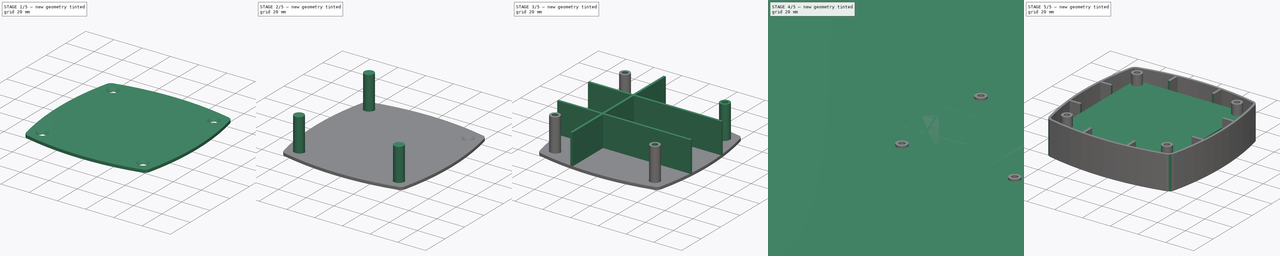
[diagram: build sequence overview — one tinted view per stage of 5, left to right]
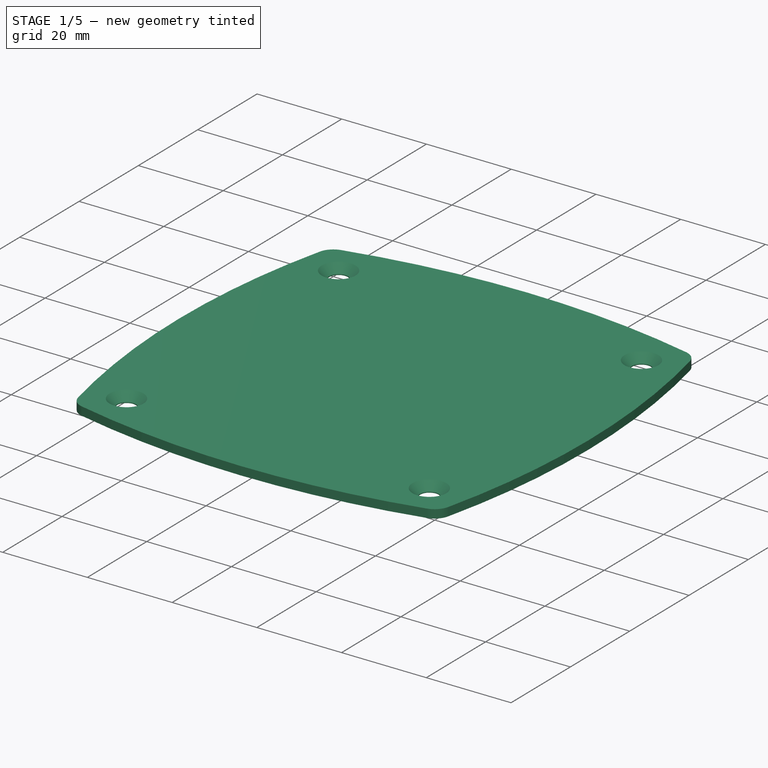
[diagram: stage 1 of 5 — iso view after this stage's code; geometry added in this stage tinted green]
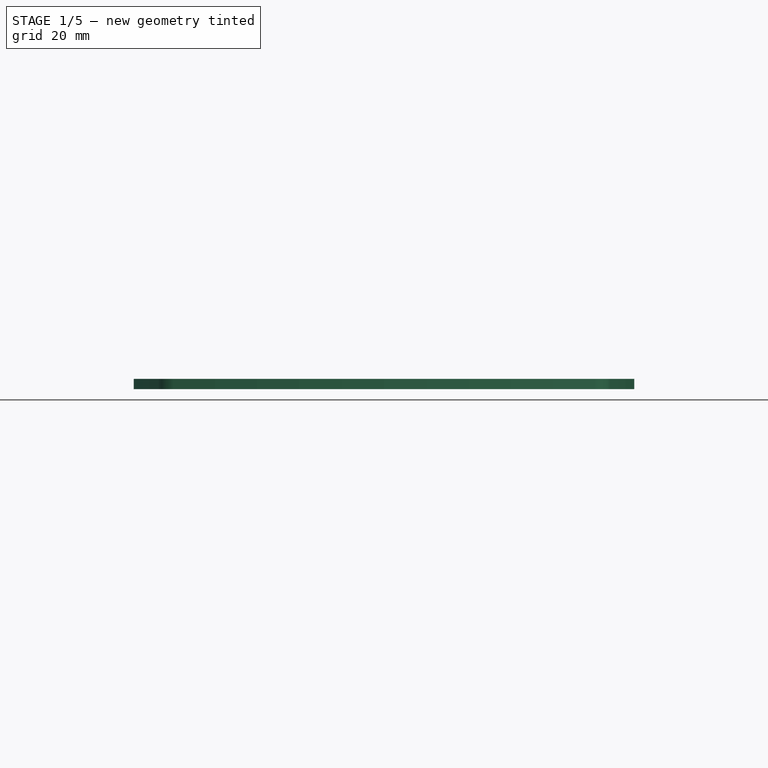
[diagram: stage 1 of 5 — front view after this stage's code; geometry added in this stage tinted green]
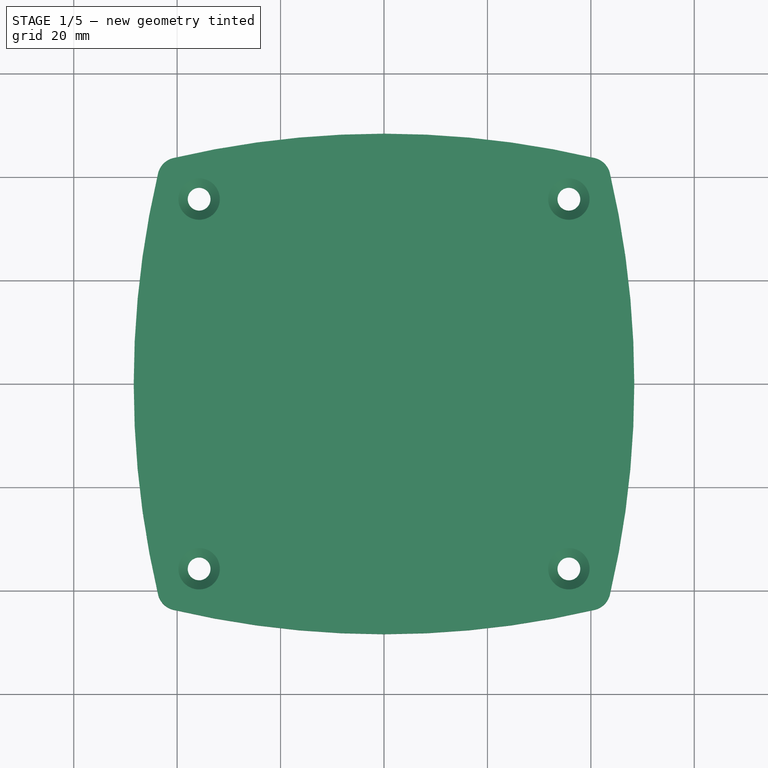
[diagram: stage 1 of 5 — top view after this stage's code; geometry added in this stage tinted green]
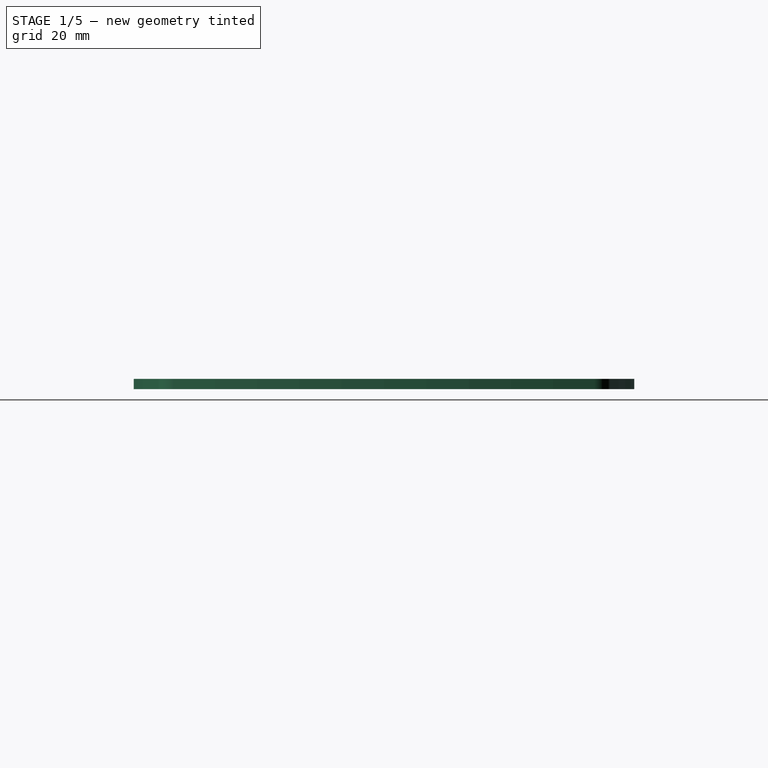
[diagram: stage 1 of 5 — right view after this stage's code; geometry added in this stage tinted green]
FCSTD DOCUMENT  (FreeCAD 0.18R16093 (Git))
Label: ground_plate
License: All rights reserved
LicenseURL: http://en.wikipedia.org/wiki/All_rights_reserved
objects: PartDesign::AdditiveCylinder×20, PartDesign::AdditiveBox×11, PartDesign::Boolean×10, PartDesign::Body×5, PartDesign::Fillet×4, TechDraw::DrawViewDimension×4, Sketcher::SketchObject×1, PartDesign::Hole×1, TechDraw::DrawSVGTemplate×1, Part::Feature×1, TechDraw::DrawViewPart×1, TechDraw::DrawPage×1
note: 85 computed .brp shape members not serialized (recipe doc carries the construction recipe); baked Part::Feature solids carry a one-line shape summary decoded from their .brp

FEATURE [PartDesign::Body] FanCover
  Group = -> [FanCoverHull,Cut,FielehFanCoverOuter,FielehFanCoverInner,FanCoverSpacer,Cut001]
  Origin = -> Origin001
  Tip = -> Cut001
FEATURE [PartDesign::AdditiveCylinder] GPCylinderInner0
  Angle = 360
  AttacherType = Attacher::AttachEngine3D
  Height = 2
  Placement = pos=(130,0,-24) rot=(0,0,1;0rad)
  Radius = 178.4
FEATURE [PartDesign::AdditiveCylinder] GPCylinderInner1
  Angle = 360
  AttacherType = Attacher::AttachEngine3D
  Height = 2
  Placement = pos=(8e-15,130,-24) rot=(0,0,1;0rad)
  Radius = 178.4
FEATURE [PartDesign::AdditiveCylinder] GPCylinderInner2
  Angle = 360
  AttacherType = Attacher::AttachEngine3D
  Height = 2
  Placement = pos=(-130,1.59e-14,-24) rot=(0,0,1;0rad)
  Radius = 178.4
FEATURE [PartDesign::AdditiveCylinder] GPCylinderInner3
  Angle = 360
  AttacherType = Attacher::AttachEngine3D
  Height = 2
  Placement = pos=(-2.39e-14,-130,-24) rot=(0,0,1;0rad)
  Radius = 178.4
FEATURE [PartDesign::Boolean] GroundPlateBase
  Group = -> [GPCylinderInner0,GPCylinderInner1,GPCylinderInner2,GPCylinderInner3]
  Type = 2
FEATURE [PartDesign::Fillet] GroundPlateFillet
  Base = -> GroundPlateBase [Edge2,Edge9,Edge4,Edge15]
  BaseFeature = -> GroundPlateBase
  Radius = 4
FEATURE [PartDesign::AdditiveBox] FanCoverSupport3
  AttacherType = Attacher::AttachEngine3D
  Height = 1.8
  Length = 91
  Placement = pos=(-46,15,-24) rot=(0,0,1;0rad)
  Width = 1.6
FEATURE [PartDesign::AdditiveBox] FanCoverSupport4
  AttacherType = Attacher::AttachEngine3D
  Height = 1.8
  Length = 91
  Placement = pos=(-46,-16.6,-24) rot=(0,0,1;0rad)
  Width = 1.6
FEATURE [PartDesign::Body] Supports
  Group = -> [SupportsFuse,Cut002,SupportsFuse001,Cut003]
  Origin = -> Origin004
  Tip = -> Cut003
FEATURE [Sketcher::SketchObject] Sketch
  MapMode = 5
  Placement = pos=(0,0,-22) rot=(0,0,1;0rad)
  Support = -> [GroundPlateFillet]
  sketch-geometry (4):
    g0: Circle CenterX=35.75 CenterY=35.75 CenterZ=0 NormalX=0 NormalY=0 NormalZ=1 AngleXU=0 Radius=2
    g1: Circle CenterX=35.75 CenterY=-35.75 CenterZ=0 NormalX=0 NormalY=0 NormalZ=1 AngleXU=0 Radius=2
    g2: Circle CenterX=-35.75 CenterY=-35.75 CenterZ=0 NormalX=0 NormalY=0 NormalZ=1 AngleXU=0 Radius=2
    g3: Circle CenterX=-35.75 CenterY=35.75 CenterZ=0 NormalX=0 NormalY=0 NormalZ=1 AngleXU=0 Radius=2
  constraints (11):
    c: DistanceX(g-2,g0) = 35.75
    c: DistanceY(g-1,g0) = 35.75
    c: Radius(g0) = 2
    c: Equal(g0,g1)
    c: Equal(g0,g2)
    c: Equal(g0,g3)
    c: Horizontal(g0,g3)
    c: Vertical(g3,g2)
    c: Vertical(g0,g1)
    c: Horizontal(g1,g2)
    c: Symmetric(g2,g0,g-1)
FEATURE [PartDesign::Hole] Hole
  BaseFeature = -> GroundPlateFillet
  Depth = 25
  DepthType = 1
  Diameter = 4.4
  DrillPoint = 1
  DrillPointAngle = 118
  HoleCutCountersinkAngle = 90
  HoleCutDepth = 0
  HoleCutDiameter = 8
  HoleCutType = 2
  ModelActualThread = false
  Profile = -> Sketch
  Tapered = false
  TaperedAngle = 90
  ThreadAngle = 60
  ThreadClass = 0
  ThreadCutOffInner = 0.0541266
  ThreadCutOffOuter = 0.108253
  ThreadDirection = 0
  ThreadFit = 0
  ThreadPitch = 0.5
  ThreadSize = 11
  ThreadType = 2
  Threaded = false
FEATURE [PartDesign::Body] GroundPlate
  Group = -> [GroundPlateBase,GroundPlateFillet,Sketch,Hole]
  Origin = -> Origin003
  Tip = -> Hole
FEATURE [TechDraw::DrawSVGTemplate] Template
  EditableTexts = Designed_by_Name=Christian <owner>; Drawing_number=1; FC-Date=2019-10-05; FC-SH=Sheet; FC-Title=Title; Subtitle=Bodenplatte
  Height = 210
  Orientation = 1
  Width = 297
FEATURE [Part::Feature] GroundPlate_cs002
  shape: bbox 96.8 x 96.8 x 1e-05 mm, 0 faces, 0 solids (baked)
FEATURE [TechDraw::DrawViewPart] View
  CoarseView = false
  Direction = (0,0,1)
  Focus = 100
  HardHidden = false
  IsoCount = 0
  IsoHidden = false
  IsoVisible = false
  LockPosition = false
  Perspective = false
  Rotation = 0
  ScaleType = 0
  SeamHidden = false
  SeamVisible = false
  SmoothHidden = false
  SmoothVisible = false
  Source = -> [Hole]
  X = 95.4959
  Y = 126.233
FEATURE [TechDraw::DrawViewDimension] Dimension
  Arbitrary = false
  FormatSpec = %.2f
  LockPosition = false
  MeasureType = 1
  OverTolerance = 0
  References2D = -> [View]
  Rotation = 0
  ScaleType = 0
  Type = 0
  UnderTolerance = 0
  X = 71.8441
  Y = 0.331138
FEATURE [TechDraw::DrawViewDimension] Dimension001
  Arbitrary = false
  FormatSpec = %.2f
  LockPosition = false
  MeasureType = 1
  OverTolerance = 0
  References2D = -> [View]
  Rotation = 0
  ScaleType = 0
  Type = 0
  UnderTolerance = 0
  X = 0.331138
  Y = 61.2477
FEATURE [TechDraw::DrawViewDimension] Dimension002
  Arbitrary = false
  FormatSpec = ⌀%.2f
  LockPosition = false
  MeasureType = 1
  OverTolerance = 0
  References2D = -> [View]
  Rotation = 0
  ScaleType = 0
  Type = 5
  UnderTolerance = 0
  X = 7.98669
  Y = 26.6539
FEATURE [TechDraw::DrawViewDimension] Dimension003
  Arbitrary = false
  FormatSpec = ⌀%.2f
  LockPosition = false
  MeasureType = 1
  OverTolerance = 0
  References2D = -> [View]
  Rotation = 0
  ScaleType = 0
  Type = 5
  UnderTolerance = 0
  X = 7.56536
  Y = 17.0465
FEATURE [TechDraw::DrawPage] Page
  KeepUpdated = true
  ProjectionType = 0
  Template = -> Template
  Views = -> [View,Dimension,Dimension001,Dimension002,Dimension003]
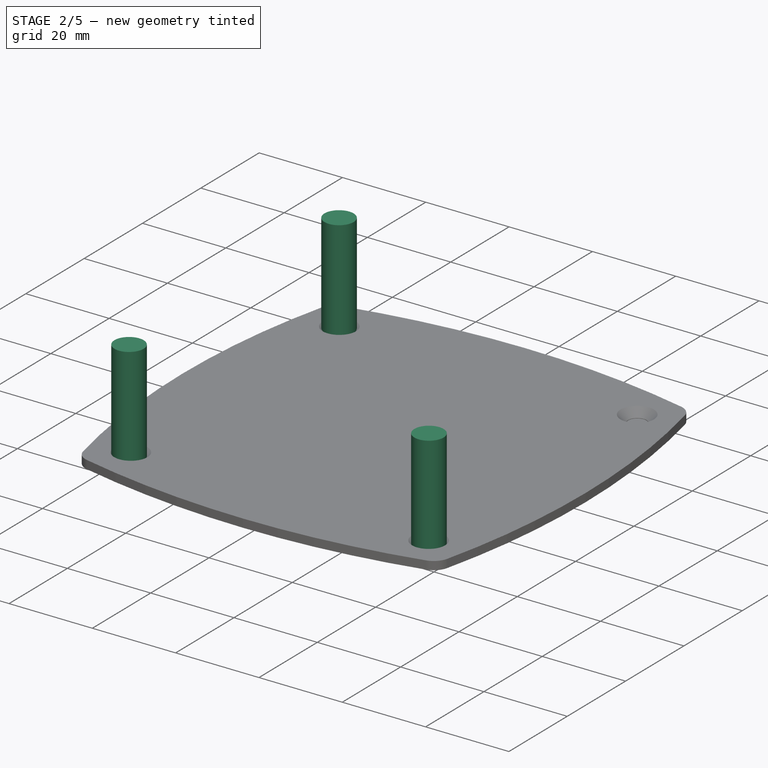
[diagram: stage 2 of 5 — iso view after this stage's code; geometry added in this stage tinted green]
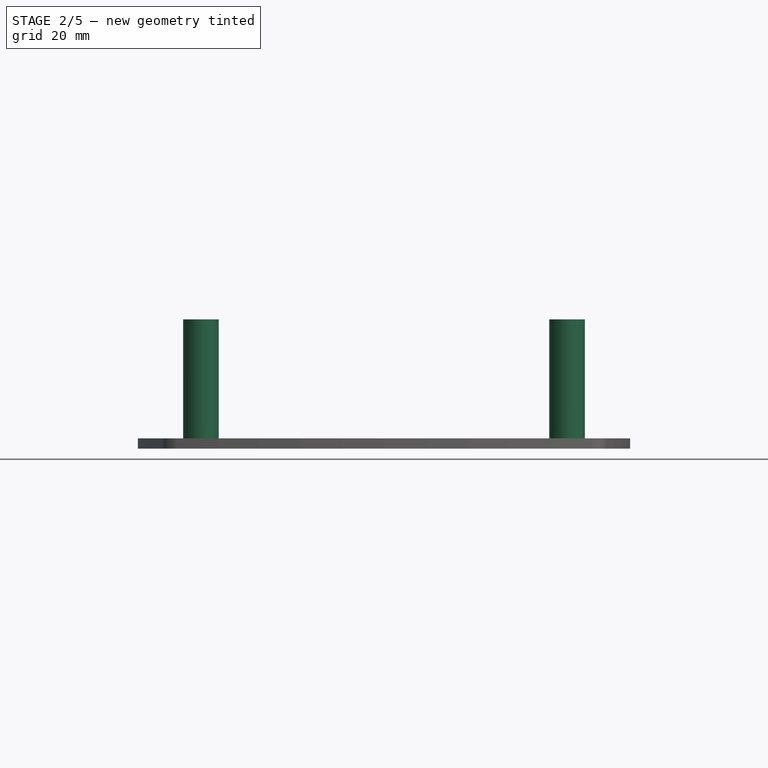
[diagram: stage 2 of 5 — front view after this stage's code; geometry added in this stage tinted green]
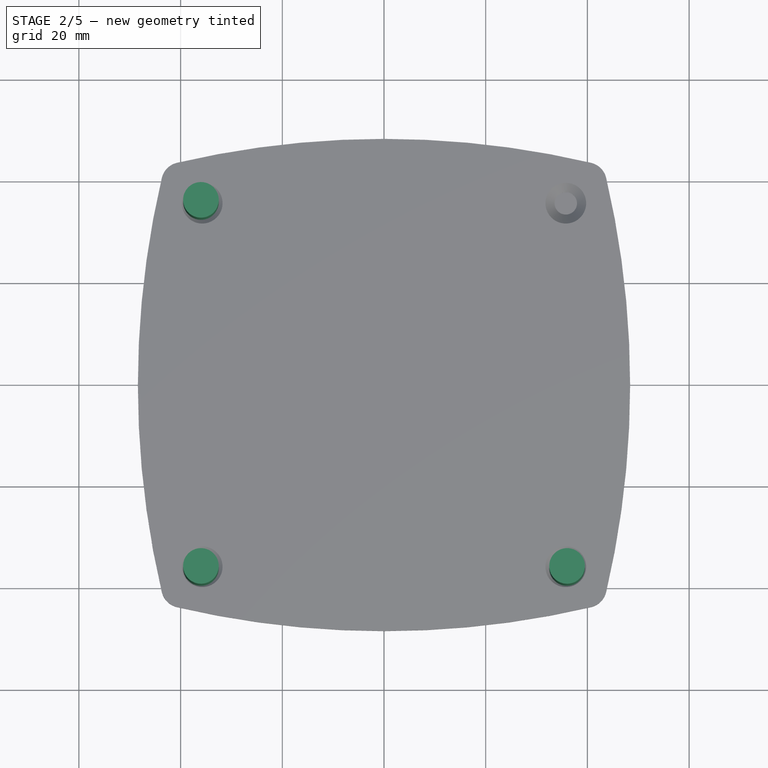
[diagram: stage 2 of 5 — top view after this stage's code; geometry added in this stage tinted green]
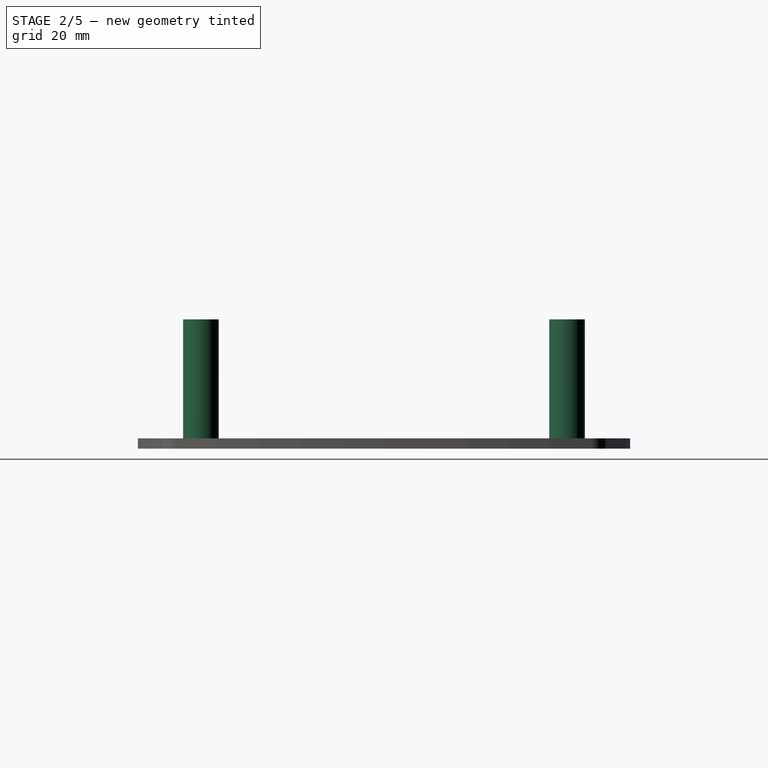
[diagram: stage 2 of 5 — right view after this stage's code; geometry added in this stage tinted green]
FEATURE [PartDesign::AdditiveBox] FanSpace
  AttacherType = Attacher::AttachEngine3D
  Height = 24
  Length = 80
  Placement = pos=(-40,-40,-23.9) rot=(0,0,1;0rad)
  Width = 80
FEATURE [PartDesign::AdditiveBox] FanCoverSupport0
  AttacherType = Attacher::AttachEngine3D
  Height = 0.1
  Length = 84
  Placement = pos=(-42,-42,-24) rot=(0,0,1;0rad)
  Width = 84
FEATURE [PartDesign::AdditiveBox] FanCoverSupport1
  AttacherType = Attacher::AttachEngine3D
  Height = 1.8
  Length = 1.6
  Placement = pos=(15,-46,-24) rot=(0,0,1;0rad)
  Width = 91
FEATURE [PartDesign::AdditiveBox] FanCoverSupport2
  AttacherType = Attacher::AttachEngine3D
  Height = 1.8
  Length = 1.6
  Placement = pos=(-16.6,-46,-24) rot=(0,0,1;0rad)
  Width = 91
FEATURE [PartDesign::AdditiveCylinder] SupportCylinder1
  Angle = 360
  AttacherType = Attacher::AttachEngine3D
  Height = 25.4
  Placement = pos=(-36,36,-24) rot=(0,0,1;0rad)
  Radius = 3.5
FEATURE [PartDesign::AdditiveCylinder] SupportCylinder2
  Angle = 360
  AttacherType = Attacher::AttachEngine3D
  Height = 25.4
  Placement = pos=(-36,-36,-24) rot=(0,0,1;0rad)
  Radius = 3.5
FEATURE [PartDesign::AdditiveCylinder] SupportCylinder3
  Angle = 360
  AttacherType = Attacher::AttachEngine3D
  Height = 25.4
  Placement = pos=(36,-36,-24) rot=(0,0,1;0rad)
  Radius = 3.5
FEATURE [PartDesign::Boolean] SupportsFuse
  Group = -> [FanCoverSupport0,FanCoverSupport1,FanCoverSupport2,FanCoverSupport3,FanCoverSupport4]
  Type = 0
FEATURE [PartDesign::Boolean] Cut002
  BaseFeature = -> SupportsFuse
  Group = -> [FanSpace]
  Type = 1
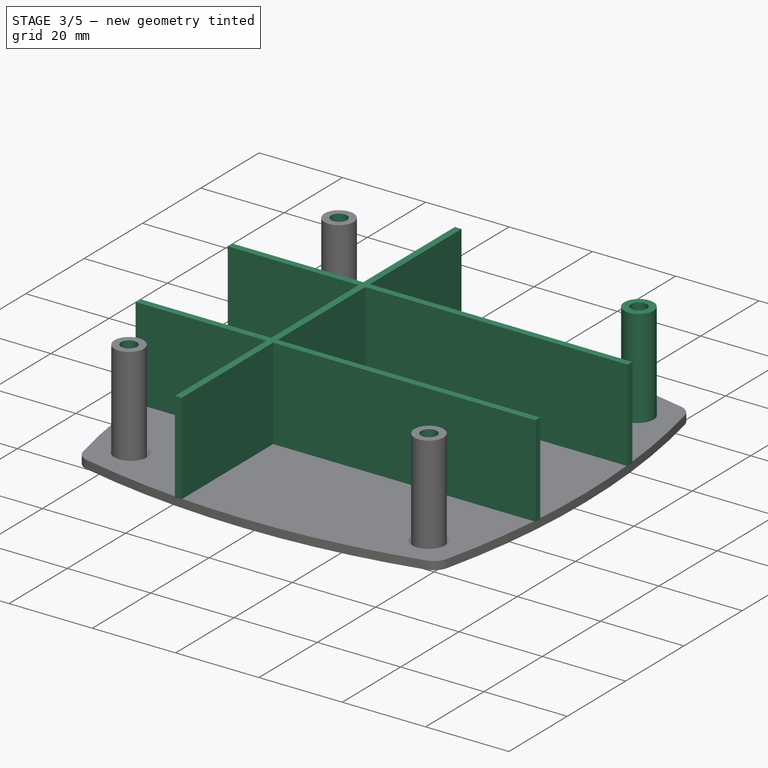
[diagram: stage 3 of 5 — iso view after this stage's code; geometry added in this stage tinted green]
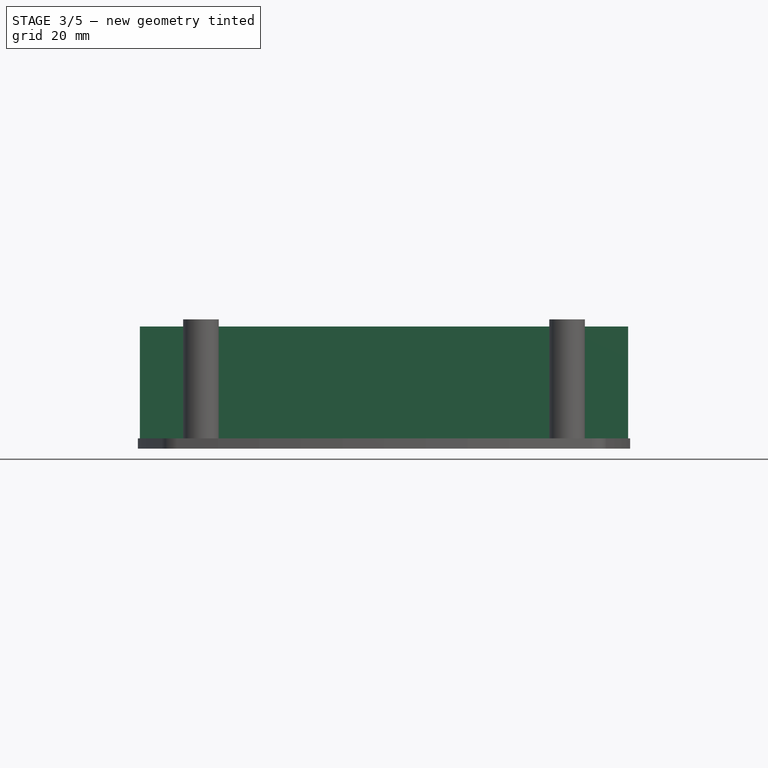
[diagram: stage 3 of 5 — front view after this stage's code; geometry added in this stage tinted green]
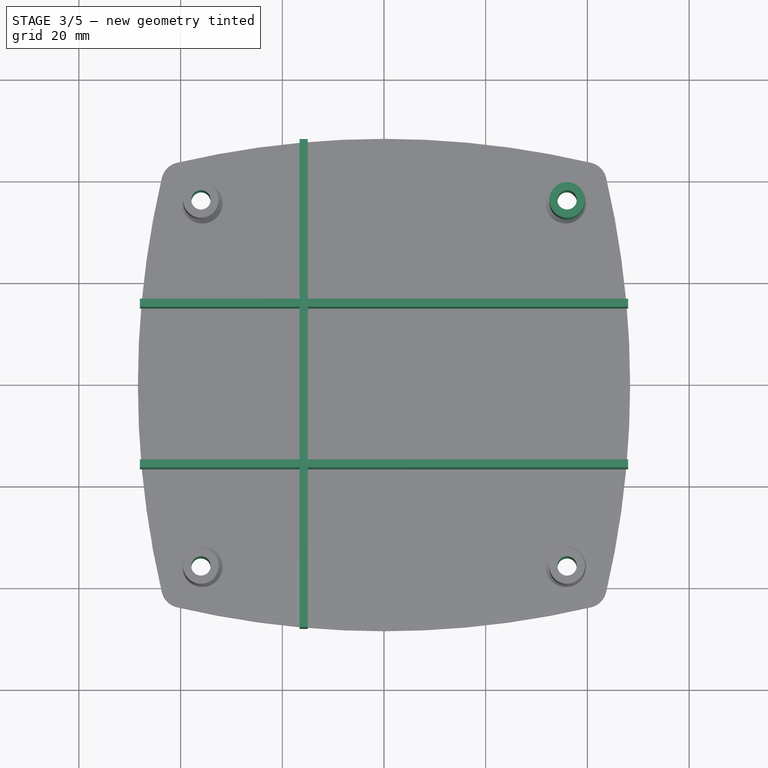
[diagram: stage 3 of 5 — top view after this stage's code; geometry added in this stage tinted green]
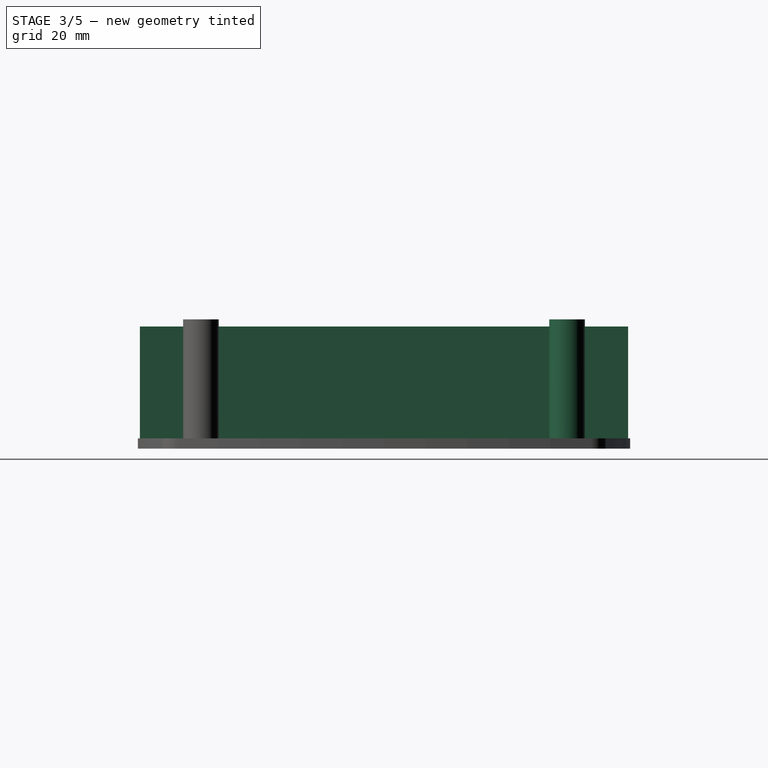
[diagram: stage 3 of 5 — right view after this stage's code; geometry added in this stage tinted green]
FEATURE [PartDesign::AdditiveBox] FanCoverSpacer1
  AttacherType = Attacher::AttachEngine3D
  Height = 22
  Length = 1.6
  Placement = pos=(-16.6,-48,-22) rot=(0,0,1;0rad)
  Width = 96
FEATURE [PartDesign::AdditiveBox] FanCoverSpacer2
  AttacherType = Attacher::AttachEngine3D
  Height = 22
  Length = 96
  Placement = pos=(-48,15,-22) rot=(0,0,1;0rad)
  Width = 1.6
FEATURE [PartDesign::AdditiveBox] FanCoverSpacer3
  AttacherType = Attacher::AttachEngine3D
  Height = 22
  Length = 96
  Placement = pos=(-48,-16.6,-22) rot=(0,0,1;0rad)
  Width = 1.6
FEATURE [PartDesign::AdditiveCylinder] SupportCylinder0
  Angle = 360
  AttacherType = Attacher::AttachEngine3D
  Height = 25.4
  Placement = pos=(36,36,-24) rot=(0,0,1;0rad)
  Radius = 3.5
FEATURE [PartDesign::AdditiveCylinder] SupportCylinderHole0
  Angle = 360
  AttacherType = Attacher::AttachEngine3D
  Height = 25.4
  Placement = pos=(36,36,-24) rot=(0,0,1;0rad)
  Radius = 1.9
FEATURE [PartDesign::AdditiveCylinder] SupportCylinderHole1
  Angle = 360
  AttacherType = Attacher::AttachEngine3D
  Height = 25.4
  Placement = pos=(-36,36,-24) rot=(0,0,1;0rad)
  Radius = 1.9
FEATURE [PartDesign::AdditiveCylinder] SupportCylinderHole2
  Angle = 360
  AttacherType = Attacher::AttachEngine3D
  Height = 25.4
  Placement = pos=(-36,-36,-24) rot=(0,0,1;0rad)
  Radius = 1.9
FEATURE [PartDesign::AdditiveCylinder] SupportCylinderHole3
  Angle = 360
  AttacherType = Attacher::AttachEngine3D
  Height = 25.4
  Placement = pos=(36,-36,-24) rot=(0,0,1;0rad)
  Radius = 1.9
FEATURE [PartDesign::Boolean] SupportsFuse001
  BaseFeature = -> Cut002
  Group = -> [SupportCylinder0,SupportCylinder1,SupportCylinder2,SupportCylinder3]
  Type = 0
FEATURE [PartDesign::Boolean] Cut003
  BaseFeature = -> SupportsFuse001
  Group = -> [SupportCylinderHole0,SupportCylinderHole1,SupportCylinderHole2,SupportCylinderHole3]
  Type = 1
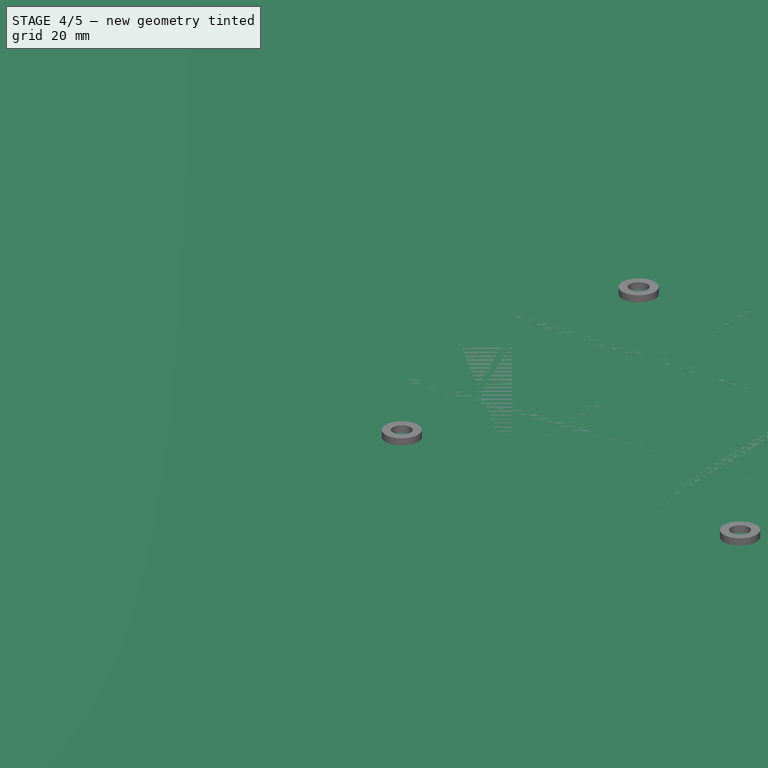
[diagram: stage 4 of 5 — iso view after this stage's code; geometry added in this stage tinted green]
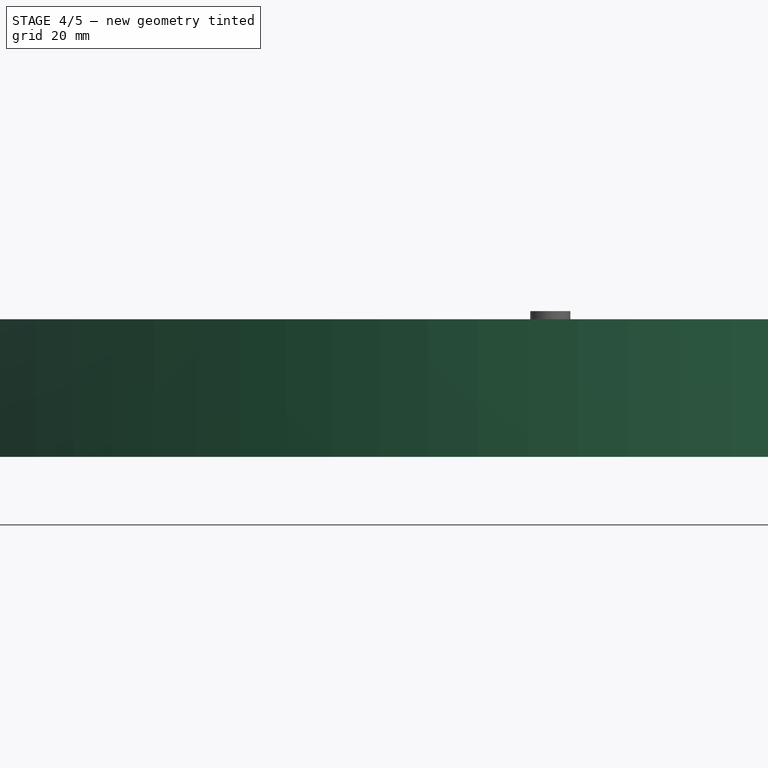
[diagram: stage 4 of 5 — front view after this stage's code; geometry added in this stage tinted green]
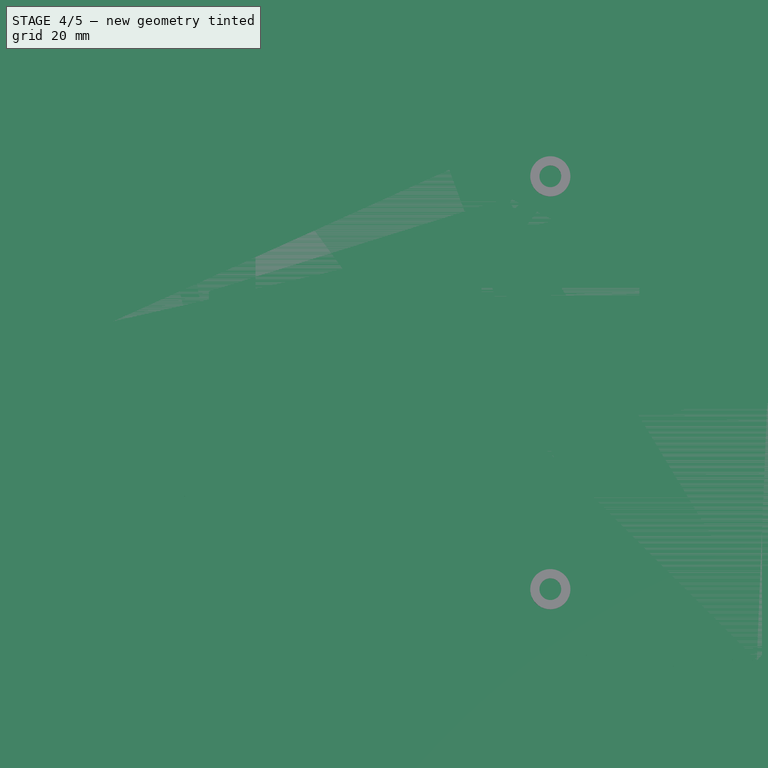
[diagram: stage 4 of 5 — top view after this stage's code; geometry added in this stage tinted green]
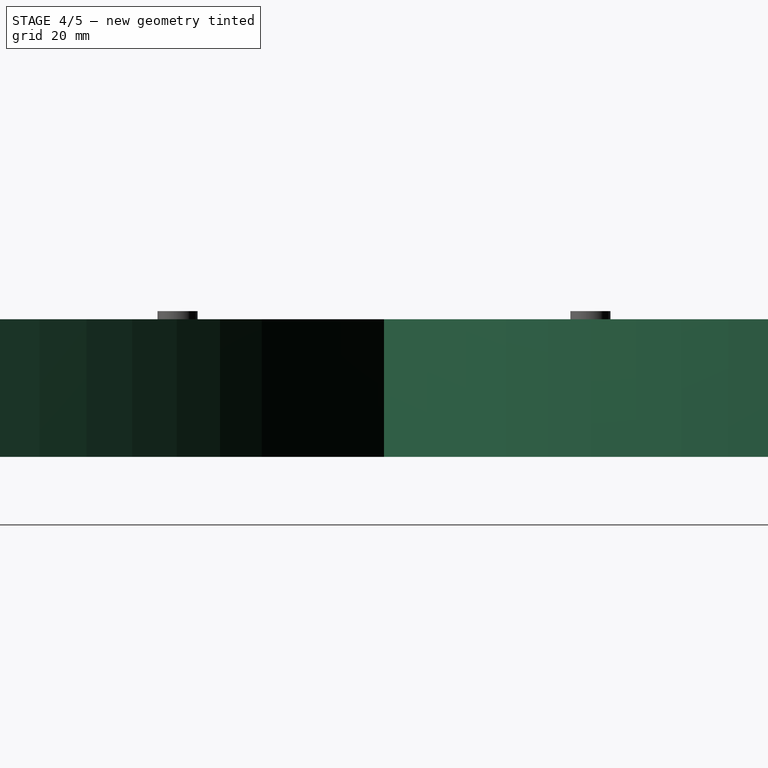
[diagram: stage 4 of 5 — right view after this stage's code; geometry added in this stage tinted green]
FEATURE [PartDesign::AdditiveCylinder] Cylinder1
  Angle = 360
  AttacherType = Attacher::AttachEngine3D
  Height = 24
  Placement = pos=(8e-15,130,-24) rot=(0,0,1;0rad)
  Radius = 180
FEATURE [PartDesign::AdditiveCylinder] Cylinder2
  Angle = 360
  AttacherType = Attacher::AttachEngine3D
  Height = 24
  Placement = pos=(-130,1.59e-14,-24) rot=(0,0,1;0rad)
  Radius = 180
FEATURE [PartDesign::AdditiveCylinder] Cylinder3
  Angle = 360
  AttacherType = Attacher::AttachEngine3D
  Height = 24
  Placement = pos=(-2.39e-14,-130,-24) rot=(0,0,1;0rad)
  Radius = 180
FEATURE [PartDesign::AdditiveCylinder] CylinderInner0
  Angle = 360
  AttacherType = Attacher::AttachEngine3D
  Height = 24
  Placement = pos=(130,0,-24) rot=(0,0,1;0rad)
  Radius = 178.4
FEATURE [PartDesign::AdditiveCylinder] CylinderInner1
  Angle = 360
  AttacherType = Attacher::AttachEngine3D
  Height = 24
  Placement = pos=(8e-15,130,-24) rot=(0,0,1;0rad)
  Radius = 178.4
FEATURE [PartDesign::AdditiveCylinder] CylinderInner2
  Angle = 360
  AttacherType = Attacher::AttachEngine3D
  Height = 24
  Placement = pos=(-130,1.59e-14,-24) rot=(0,0,1;0rad)
  Radius = 178.4
FEATURE [PartDesign::AdditiveCylinder] CylinderInner3
  Angle = 360
  AttacherType = Attacher::AttachEngine3D
  Height = 24
  Placement = pos=(-2.39e-14,-130,-24) rot=(0,0,1;0rad)
  Radius = 178.4
FEATURE [PartDesign::Boolean] FanCoverSpace
  Group = -> [CylinderInner0,CylinderInner1,CylinderInner2,CylinderInner3]
  Type = 2
FEATURE [PartDesign::AdditiveBox] FanCoverSpacer0
  AttacherType = Attacher::AttachEngine3D
  Height = 22
  Length = 1.6
  Placement = pos=(15,-48,-22) rot=(0,0,1;0rad)
  Width = 96
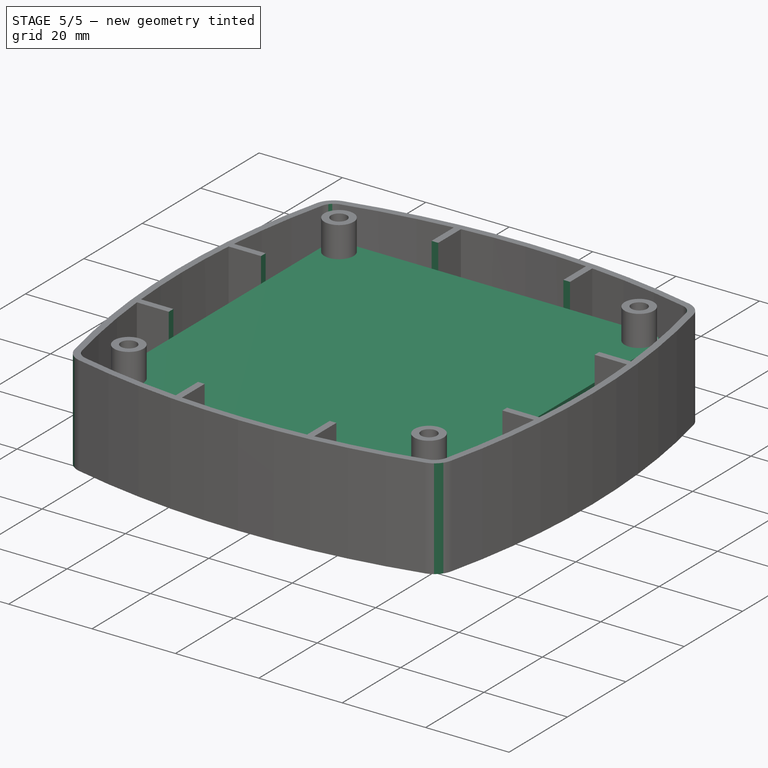
[diagram: stage 5 of 5 — iso view after this stage's code; geometry added in this stage tinted green]
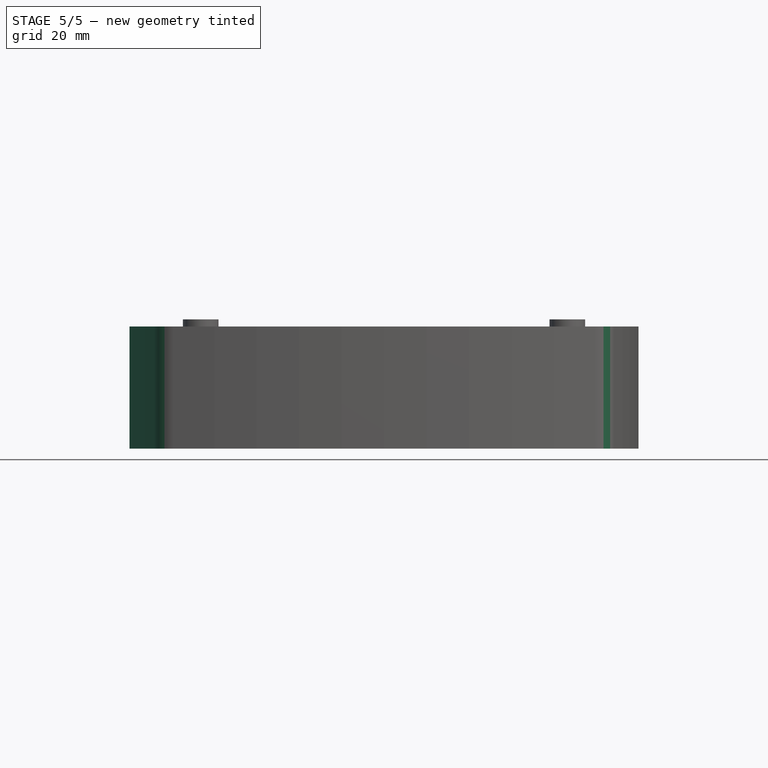
[diagram: stage 5 of 5 — front view after this stage's code; geometry added in this stage tinted green]
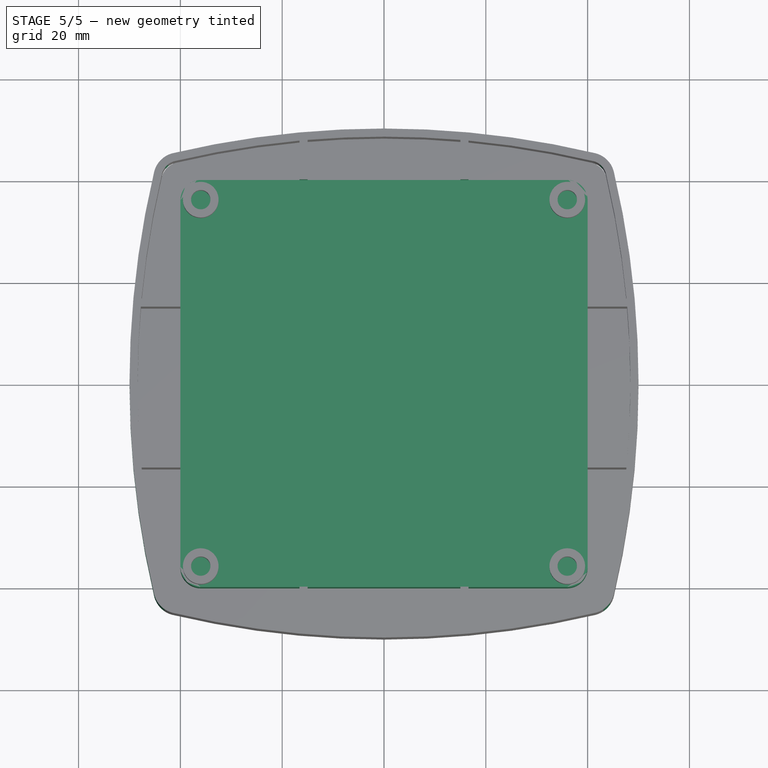
[diagram: stage 5 of 5 — top view after this stage's code; geometry added in this stage tinted green]
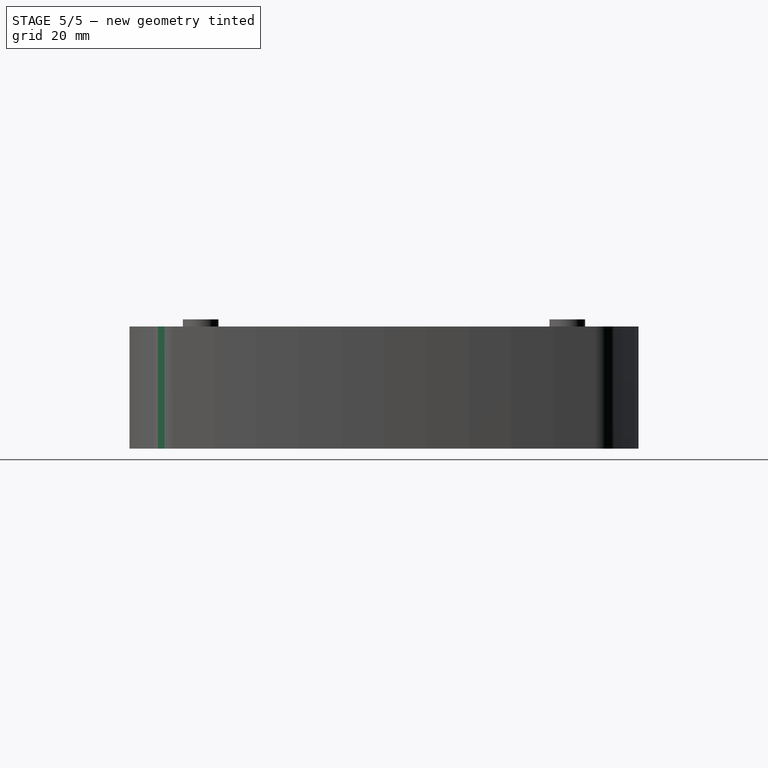
[diagram: stage 5 of 5 — right view after this stage's code; geometry added in this stage tinted green]
FEATURE [PartDesign::AdditiveBox] FanBox
  AttacherType = Attacher::AttachEngine3D
  Height = 15
  Length = 80
  Placement = pos=(-40,-40,-21) rot=(0,0,1;0rad)
  Width = 80
FEATURE [PartDesign::Fillet] FanFillet
  Base = -> FanBox [Edge1,Edge5,Edge3,Edge7]
  BaseFeature = -> FanBox
  Placement = pos=(-40,-40,-21) rot=(0,0,1;0rad)
  Radius = 4
FEATURE [PartDesign::Body] Fan
  Group = -> [FanBox,FanFillet]
  Origin = -> Origin
  Tip = -> FanFillet
FEATURE [PartDesign::AdditiveCylinder] Cylinder0
  Angle = 360
  AttacherType = Attacher::AttachEngine3D
  Height = 24
  Placement = pos=(130,0,-24) rot=(0,0,1;0rad)
  Radius = 180
FEATURE [PartDesign::Boolean] FanCoverHull
  Group = -> [Cylinder0,Cylinder1,Cylinder2,Cylinder3]
  Type = 2
FEATURE [PartDesign::Body] FanCoverInner
  Group = -> [FanCoverSpace]
  Origin = -> Origin002
  Tip = -> FanCoverSpace
FEATURE [PartDesign::Boolean] Cut
  BaseFeature = -> FanCoverHull
  Group = -> [FanCoverInner]
  Type = 1
FEATURE [PartDesign::Fillet] FielehFanCoverOuter
  Base = -> Cut [Edge2,Edge14,Edge4,Edge25]
  BaseFeature = -> Cut
  Radius = 5
FEATURE [PartDesign::Fillet] FielehFanCoverInner
  Base = -> FielehFanCoverOuter [Edge38,Edge39,Edge41,Edge40]
  BaseFeature = -> FielehFanCoverOuter
  Radius = 3.4
FEATURE [PartDesign::Boolean] FanCoverSpacer
  BaseFeature = -> FielehFanCoverInner
  Group = -> [FanCoverSpacer0,FanCoverSpacer1,FanCoverSpacer2,FanCoverSpacer3]
  Type = 0
FEATURE [PartDesign::Boolean] Cut001
  BaseFeature = -> FanCoverSpacer
  Type = 1
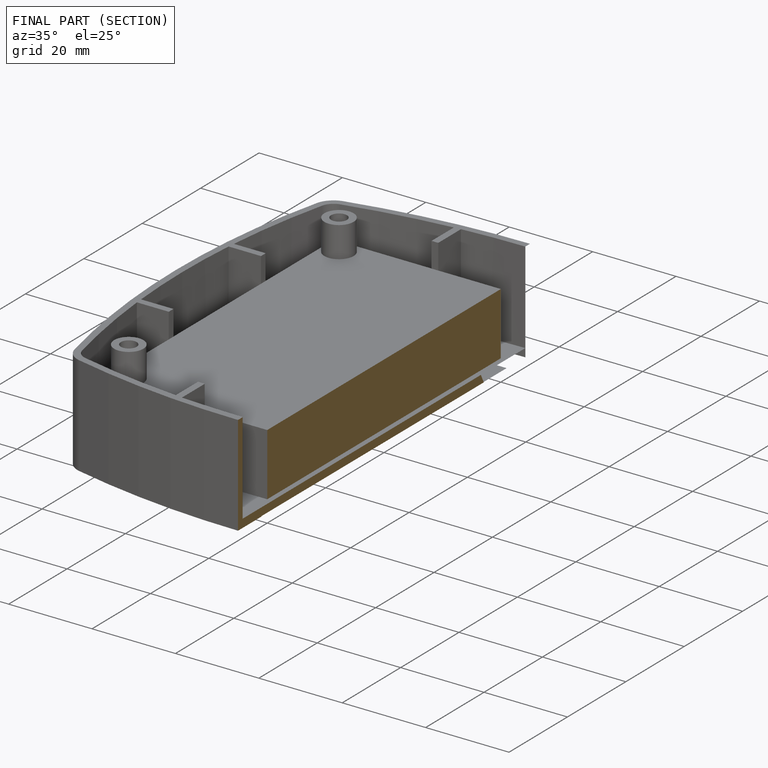
[diagram: finished part — half-section view (interior)]
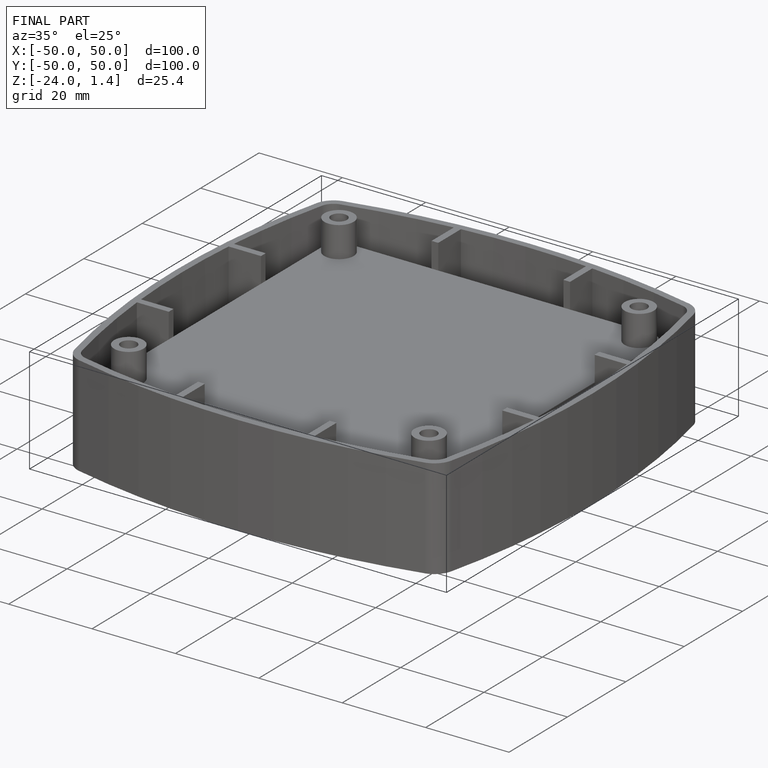
[diagram: finished part — iso view with bounding-box wireframe]
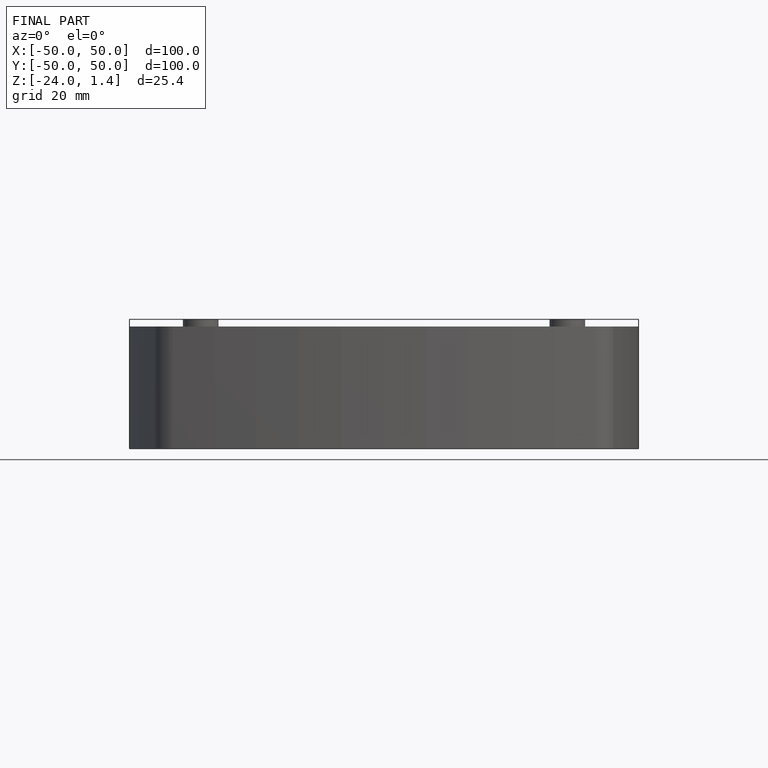
[diagram: finished part — front view with bounding-box wireframe]
